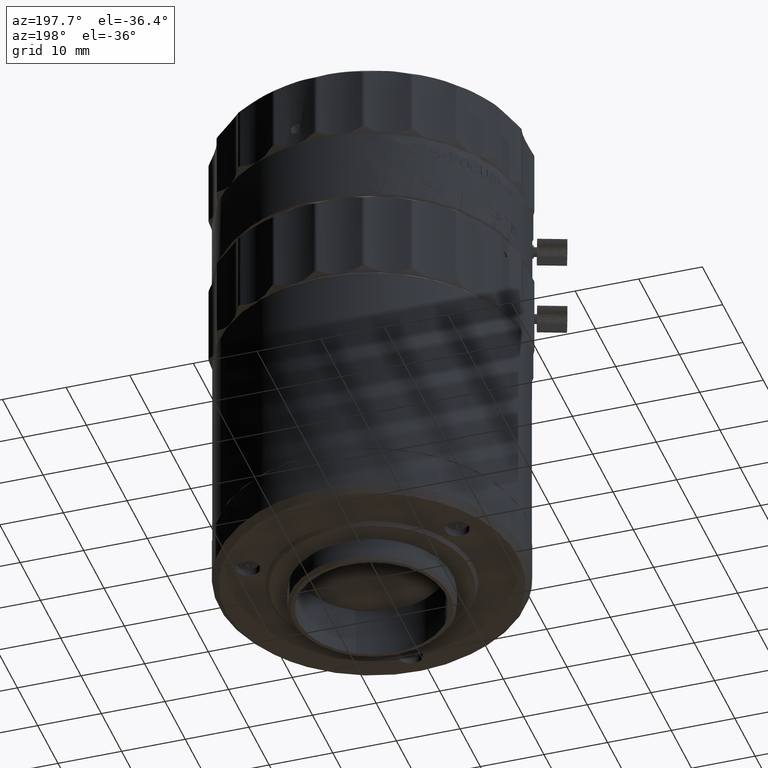
[diagram: clean part render]
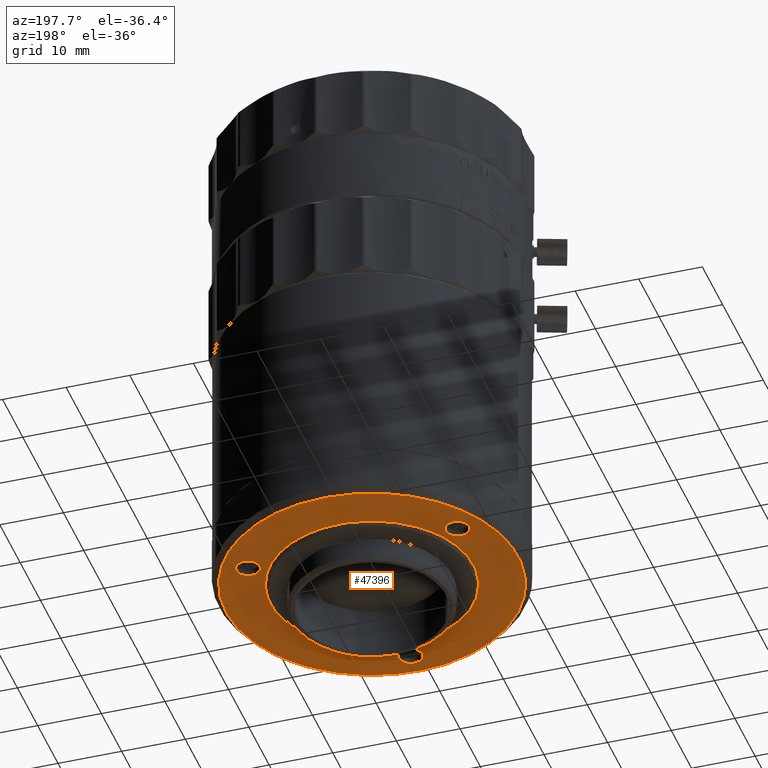
[diagram: same view with one face highlighted and labeled with its STEP entity id]
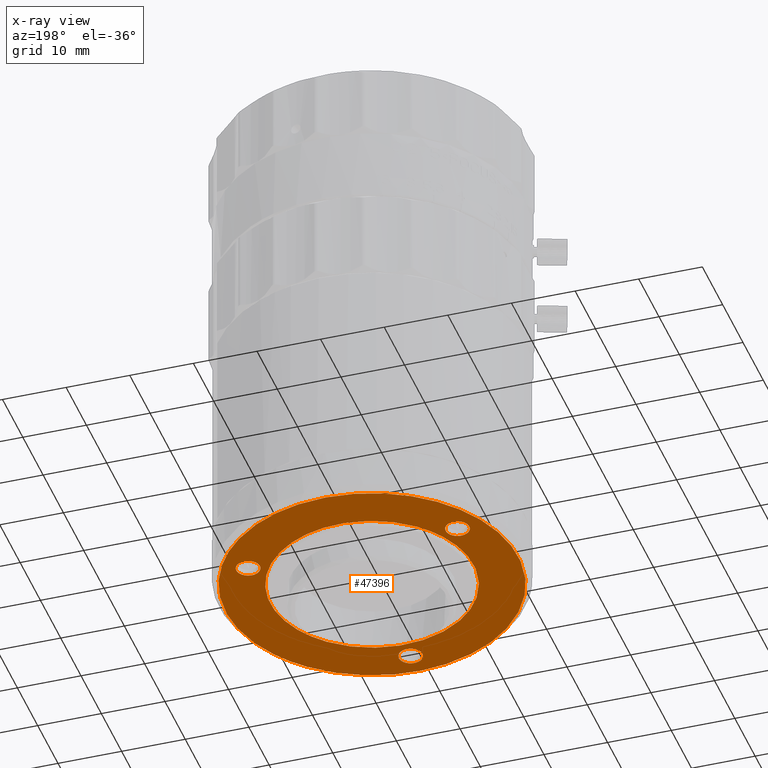
[diagram: x-ray of the same camera — body ghosted, the highlighted face saturated]
A machine part, auxiliary view. The second image highlights one B-rep face of the part: STEP entity #47396.
The next image is the same camera in x-ray: the body ghosted, the highlighted face saturated — about 0% of this face is hidden behind the body in this view.
In plain terms, the highlighted planar face has unit normal (0, 0, -1).
Its self-contained STEP definition (entity closure, byte-faithful):
#305 = CARTESIAN_POINT ( 'NONE',  ( 22.86511580797546728, 133.2777552560372953, -66.23000000000000398 ) ) ;
#885 = CARTESIAN_POINT ( 'NONE',  ( 29.16768962255219222, 173.2746603625193984, -66.23000000000001819 ) ) ;
#2241 = CARTESIAN_POINT ( 'NONE',  ( 24.48162427194447233, 129.9935959065149405, -66.23000000000000398 ) ) ;
#2401 = EDGE_CURVE ( 'NONE', #3842, #62887, #72625, .T. ) ;
#2774 = CARTESIAN_POINT ( 'NONE',  ( 22.14999999549038634, 131.5513128149209479, -66.22999999999998977 ) ) ;
#3199 = CARTESIAN_POINT ( 'NONE',  ( 26.82679825103461724, 127.9584358768173757, -66.23000000000000398 ) ) ;
#3771 = CARTESIAN_POINT ( 'NONE',  ( 1.049209739544486153, 152.4789212993354113, -66.23000000000001819 ) ) ;
#3808 = CARTESIAN_POINT ( 'NONE',  ( 46.84169437882180631, 153.7849786404583199, -66.23000000000001819 ) ) ;
#3842 = VERTEX_POINT ( 'NONE', #44959 ) ;
#4189 = CARTESIAN_POINT ( 'NONE',  ( 5.928634027317567501, 159.3647730841125849, -66.23000000000000398 ) ) ;
#4323 = CARTESIAN_POINT ( 'NONE',  ( 24.57520401468033810, 127.7912879772285493, -66.23000000000000398 ) ) ;
#4356 = CARTESIAN_POINT ( 'NONE',  ( 46.90557482590326543, 148.6155403714443253, -66.23000000000001819 ) ) ;
#4838 = CARTESIAN_POINT ( 'NONE',  ( 15.72715399654231128, 129.3225048316934647, -66.22999999999998977 ) ) ;
#5249 = CARTESIAN_POINT ( 'NONE',  ( 6.620517323588189562, 158.6943003469959876, -66.23000000000000398 ) ) ;
#5346 = CARTESIAN_POINT ( 'NONE',  ( 10.74096379030877380, 141.7617717105062809, -66.23000000000396881 ) ) ;
#5386 = CARTESIAN_POINT ( 'NONE',  ( 26.07681818651996508, 127.8779796309102466, -66.23000000000001819 ) ) ;
#5820 = CARTESIAN_POINT ( 'NONE',  ( 9.025121969450164983, 159.1593434167909322, -66.23000000000001819 ) ) ;
#6233 = ORIENTED_EDGE ( 'NONE', *, *, #51388, .T. ) ;
#6433 = CARTESIAN_POINT ( 'NONE',  ( 22.14999999549038634, 132.0419630475357735, -66.23000000000000398 ) ) ;
#6436 = CARTESIAN_POINT ( 'NONE',  ( 11.45468207834791130, 140.7943274061775014, -66.23000000000394039 ) ) ;
#6528 = EDGE_CURVE ( 'NONE', #70733, #95510, #100172, .T. ) ;
#6871 = CARTESIAN_POINT ( 'NONE',  ( 38.72991945676234593, 159.5836240967201718, -66.23000000000001819 ) ) ;
#7240 = CARTESIAN_POINT ( 'NONE',  ( 9.027050794742237372, 156.7166083007095096, -66.23000000000403986 ) ) ;
#7463 = CARTESIAN_POINT ( 'NONE',  ( 9.395809699991209740, 160.5386319247196241, -66.23000000000000398 ) ) ;
#7578 = CARTESIAN_POINT ( 'NONE',  ( 34.03198958296794530, 171.5650356808088475, -66.23000000000001819 ) ) ;
#7743 = EDGE_CURVE ( 'NONE', #95510, #70733, #106472, .T. ) ;
#8076 = CARTESIAN_POINT ( 'NONE',  ( 22.51858909261164854, 132.9314345223532996, -66.23000000000001819 ) ) ;
#10131 = VERTEX_POINT ( 'NONE', #47151 ) ;
#11171 = CARTESIAN_POINT ( 'NONE',  ( 23.75504143072492269, 129.9465201695234953, -66.23000000000001819 ) ) ;
#11629 = CARTESIAN_POINT ( 'NONE',  ( 44.00602286265920782, 139.4306750924833693, -66.23000000000000398 ) ) ;
#12142 = CARTESIAN_POINT ( 'NONE',  ( 17.87253744394367416, 128.6148985540365288, -66.22999999999998977 ) ) ;
#12695 = CARTESIAN_POINT ( 'NONE',  ( 11.69735655359577819, 131.3488046066416928, -66.22999999999998977 ) ) ;
#13246 = CARTESIAN_POINT ( 'NONE',  ( 2.492835273190256551, 159.0852499328626095, -66.23000000000000398 ) ) ;
#13284 = CARTESIAN_POINT ( 'NONE',  ( 42.60376556225094191, 137.2568754293306199, -66.22999999999998977 ) ) ;
#13775 = CARTESIAN_POINT ( 'NONE',  ( 20.06611859645375517, 128.0853546431333143, -66.22999999999998977 ) ) ;
#13931 = VERTEX_POINT ( 'NONE', #108793 ) ;
#13997 = B_SPLINE_CURVE_WITH_KNOTS ( 'NONE', 3,
 ( #100460, #91523, #16489, #93712, #59052, #23262, #75286, #84775, #42793, #76945, #92609, #14849, #305, #8076, #49009, #58505, #6433, #83129 ),
 .UNSPECIFIED., .F., .F.,
 ( 4, 2, 2, 2, 2, 2, 2, 2, 4 ),
 ( 0.000000000000000000, 0.1250000000000000000, 0.2500000000000000000, 0.3750000000000000000, 0.5000000000000000000, 0.6250000000000000000, 0.7500000000000000000, 0.8750000000000000000, 1.000000000000000000 ),
 .UNSPECIFIED. ) ;
#14015 = CARTESIAN_POINT ( 'NONE',  ( 13.15347174806973918, 162.5587951103879902, -66.23000000000259035 ) ) ;
#14205 = CARTESIAN_POINT ( 'NONE',  ( 8.477342938294080810, 158.6796801148949498, -66.23000000000001819 ) ) ;
#14745 = CARTESIAN_POINT ( 'NONE',  ( 38.60404960288011722, 160.5386696219822511, -66.23000000000001819 ) ) ;
#14770 = CARTESIAN_POINT ( 'NONE',  ( 9.162400619855070261, 161.2281216038731486, -66.22999999999998977 ) ) ;
#14849 = CARTESIAN_POINT ( 'NONE',  ( 23.06569557218887567, 133.4119501768041971, -66.23000000000001819 ) ) ;
#14884 = CARTESIAN_POINT ( 'NONE',  ( 14.04939135957394392, 171.6041493882118800, -66.22999999999998977 ) ) ;
#14895 = EDGE_CURVE ( 'NONE', #13931, #29158, #48926, .T. ) ;
#15832 = CARTESIAN_POINT ( 'NONE',  ( 39.52948266739034722, 161.8985943410000061, -66.23000000000000398 ) ) ;
#15972 = CARTESIAN_POINT ( 'NONE',  ( 4.522969443121461097, 163.1217951098619210, -66.23000000000001819 ) ) ;
#16406 = CARTESIAN_POINT ( 'NONE',  ( 6.832810053116331162, 158.5717330824522833, -66.22999999999998977 ) ) ;
#16489 = CARTESIAN_POINT ( 'NONE',  ( 25.80285143298637962, 132.2780716204427165, -66.23000000000000398 ) ) ;
#17279 = CARTESIAN_POINT ( 'NONE',  ( 8.609795748582136810, 146.0657891699208619, -66.23000000000399723 ) ) ;
#17564 = CARTESIAN_POINT ( 'NONE',  ( 39.90212122937762729, 148.0561862055548943, -66.23000000000344301 ) ) ;
#18118 = EDGE_LOOP ( 'NONE', ( #32131, #75890, #65751 ) ) ;
#18226 = DIRECTION ( 'NONE',  ( 0.000000000000000000, 0.000000000000000000, -1.000000000000000000 ) ) ;
#19018 = CARTESIAN_POINT ( 'NONE',  ( 22.86501281713719891, 130.3150364411235955, -66.23000000000001819 ) ) ;
#19251 = CARTESIAN_POINT ( 'NONE',  ( 13.15347174806973918, 162.5587951103879902, -66.23000000000259035 ) ) ;
#20018 = CARTESIAN_POINT ( 'NONE',  ( 1.116746457618743582, 153.2300271747362785, -66.22999999999998977 ) ) ;
#20055 = CARTESIAN_POINT ( 'NONE',  ( 46.99183166839186754, 149.9057137558981765, -66.23000000000000398 ) ) ;
#20430 = CARTESIAN_POINT ( 'NONE',  ( 5.743390041245866051, 160.7807742042547261, -66.23000000000000398 ) ) ;
#20560 = CARTESIAN_POINT ( 'NONE',  ( 6.581505149488910078, 135.7577779121616004, -66.23000000000000398 ) ) ;
#20791 = ORIENTED_EDGE ( 'NONE', *, *, #7743, .T. ) ;
#20982 = CARTESIAN_POINT ( 'NONE',  ( 5.695224947181267261, 160.0542627632660242, -66.23000000000000398 ) ) ;
#21111 = CARTESIAN_POINT ( 'NONE',  ( 2.930929198295685545, 141.4496140984014687, -66.23000000000001819 ) ) ;
#21464 = CARTESIAN_POINT ( 'NONE',  ( 42.07136544924252775, 159.3645330625698762, -66.22999999999998977 ) ) ;
#21671 = CARTESIAN_POINT ( 'NONE',  ( 1.465199440613994541, 155.4604375212036587, -66.23000000000000398 ) ) ;
#21708 = CARTESIAN_POINT ( 'NONE',  ( 42.97768881783573391, 137.7862697514789829, -66.23000000000000398 ) ) ;
#22223 = CARTESIAN_POINT ( 'NONE',  ( 23.82026210348132977, 127.7848535811003927, -66.22999999999998977 ) ) ;
#22257 = CARTESIAN_POINT ( 'NONE',  ( 46.83529849393060118, 147.9732624365449851, -66.23000000000001819 ) ) ;
#22709 = CARTESIAN_POINT ( 'NONE',  ( 26.35648493659508063, 134.9258965150241920, -66.23000000000368459 ) ) ;
#22751 = CARTESIAN_POINT ( 'NONE',  ( 7.853789837408690744, 167.1936564098988072, -66.23000000000001819 ) ) ;
#23155 = CARTESIAN_POINT ( 'NONE',  ( 39.52256838594695409, 158.6795645621527342, -66.23000000000001819 ) ) ;
#23262 = CARTESIAN_POINT ( 'NONE',  ( 25.13498717383233583, 133.2778582468849038, -66.23000000000001819 ) ) ;
#23307 = CARTESIAN_POINT ( 'NONE',  ( 6.325698764344966918, 165.5336705980580234, -66.23000000000000398 ) ) ;
#24579 = CARTESIAN_POINT ( 'NONE',  ( 11.83071547908005527, 161.3390289955779338, -66.23000000000401144 ) ) ;
#24724 = CARTESIAN_POINT ( 'NONE',  ( 39.96994768514342411, 162.0986941916139017, -66.23000000000001819 ) ) ;
#25979 = CARTESIAN_POINT ( 'NONE',  ( 14.69315947017105906, 163.9786023377935749, -66.23000000000394039 ) ) ;
#26065 = FACE_OUTER_BOUND ( 'NONE', #83727, .T. ) ;
#26311 = CARTESIAN_POINT ( 'NONE',  ( 25.84999999548983851, 131.5509316404623803, -66.23000000000000398 ) ) ;
#28277 = CARTESIAN_POINT ( 'NONE',  ( 6.224925650962184420, 161.6150874739696235, -66.23000000000001819 ) ) ;
#28468 = CARTESIAN_POINT ( 'NONE',  ( 6.620517323588189562, 158.6943003469959876, -66.23000000000000398 ) ) ;
#28824 = CARTESIAN_POINT ( 'NONE',  ( 41.37948266739000758, 158.6943003469999951, -66.23000000000000398 ) ) ;
#28968 = CARTESIAN_POINT ( 'NONE',  ( 0.9948973420655217170, 150.2210042472474640, -66.23000000000001819 ) ) ;
#29004 = CARTESIAN_POINT ( 'NONE',  ( 44.54167390258786696, 161.1627737984227906, -66.23000000000000398 ) ) ;
#29158 = VERTEX_POINT ( 'NONE', #71516 ) ;
#29353 = EDGE_LOOP ( 'NONE', ( #40800, #70488 ) ) ;
#29386 = CARTESIAN_POINT ( 'NONE',  ( 8.470517323586781444, 161.8985943409980166, -66.23000000000000398 ) ) ;
#29511 = CARTESIAN_POINT ( 'NONE',  ( 17.14797048483121955, 128.8279140030776944, -66.22999999999998977 ) ) ;
#30052 = CARTESIAN_POINT ( 'NONE',  ( 6.097908112704895522, 136.3366966249232917, -66.23000000000001819 ) ) ;
#30087 = CARTESIAN_POINT ( 'NONE',  ( 45.52300470154875001, 142.2851759066111299, -66.22999999999998977 ) ) ;
#30560 = CARTESIAN_POINT ( 'NONE',  ( 39.59190412186221408, 133.8880509856580545, -66.23000000000165244 ) ) ;
#30581 = CARTESIAN_POINT ( 'NONE',  ( 20.40980180609041739, 135.1587402916988481, -66.23000000000384091 ) ) ;
#30618 = CARTESIAN_POINT ( 'NONE',  ( 11.05822890273754666, 169.8878549434689944, -66.22999999999998977 ) ) ;
#31165 = CARTESIAN_POINT ( 'NONE',  ( 5.191568029304287180, 137.5370669626567235, -66.23000000000000398 ) ) ;
#31495 = CARTESIAN_POINT ( 'NONE',  ( 42.25675435470854779, 160.7807932155354820, -66.23000000000001819 ) ) ;
#31582 = CARTESIAN_POINT ( 'NONE',  ( 7.546897272642198118, 158.4302286392507142, -66.23000000000000398 ) ) ;
#32102 = CARTESIAN_POINT ( 'NONE',  ( 38.73099017463334093, 161.0118555328957086, -66.23000000000001819 ) ) ;
#32128 = CARTESIAN_POINT ( 'NONE',  ( 8.864041386391132704, 161.6171903714457585, -66.23000000000000398 ) ) ;
#32131 = ORIENTED_EDGE ( 'NONE', *, *, #84311, .F. ) ;
#32216 = CARTESIAN_POINT ( 'NONE',  ( 34.84654770465032669, 139.0340784783462311, -66.23000000000176613 ) ) ;
#32677 = CARTESIAN_POINT ( 'NONE',  ( 41.16685983110157565, 158.5715424952327623, -66.23000000000000398 ) ) ;
#33227 = CARTESIAN_POINT ( 'NONE',  ( 6.620517323588189562, 158.6943003469959876, -66.23000000000000398 ) ) ;
#33344 = CARTESIAN_POINT ( 'NONE',  ( 7.326441301835684428, 166.6571929082105044, -66.23000000000001819 ) ) ;
#33355 = FACE_BOUND ( 'NONE', #18118, .T. ) ;
#33538 = CARTESIAN_POINT ( 'NONE',  ( 7.943498102967983421, 149.6021858579933905, -66.23000000000401144 ) ) ;
#34398 = CARTESIAN_POINT ( 'NONE',  ( 37.18215498872068281, 160.1032878701169579, -66.23000000000347143 ) ) ;
#34723 = CARTESIAN_POINT ( 'NONE',  ( 25.61529522073493581, 130.8620224644217842, -66.23000000000000398 ) ) ;
#34949 = CARTESIAN_POINT ( 'NONE',  ( 43.91858428241379642, 162.2964473442360145, -66.23000000000000398 ) ) ;
#35018 = CARTESIAN_POINT ( 'NONE',  ( 43.05616257219786291, 163.7902055638350589, -66.23000000000000398 ) ) ;
#35475 = ORIENTED_EDGE ( 'NONE', *, *, #2401, .T. ) ;
#36086 = CARTESIAN_POINT ( 'NONE',  ( 28.81526187169330555, 166.1977376765568124, -66.23000000000364196 ) ) ;
#36401 = ORIENTED_EDGE ( 'NONE', *, *, #86044, .T. ) ;
#37366 = CARTESIAN_POINT ( 'NONE',  ( 8.138589871566992429, 134.1235480847321639, -66.22999999999998977 ) ) ;
#37400 = CARTESIAN_POINT ( 'NONE',  ( 46.48276650254521059, 155.6898300162371243, -66.22999999999998977 ) ) ;
#37935 = CARTESIAN_POINT ( 'NONE',  ( 7.602262816651958133, 134.6507288938985027, -66.22999999999998977 ) ) ;
#38279 = B_SPLINE_CURVE_WITH_KNOTS ( 'NONE', 3,
 ( #32216, #38970, #91525, #82027, #49548, #73098, #22709, #100462, #66357, #30581, #83131, #57964, #38436, #56836, #74734, #6436, #5346, #49011 ),
 .UNSPECIFIED., .F., .F.,
 ( 4, 2, 2, 2, 2, 2, 2, 2, 4 ),
 ( 0.6367615529778706263, 0.6821663588556369229, 0.7275711647334031085, 0.7729759706111691830, 0.8183807764889353686, 0.8637855823667015542, 0.9091903882444676288, 0.9545951941222338144, 1.000000000000000000 ),
 .UNSPECIFIED. ) ;
#38436 = CARTESIAN_POINT ( 'NONE',  ( 15.96330742234682987, 136.9097998948299448, -66.23000000000388354 ) ) ;
#38480 = CARTESIAN_POINT ( 'NONE',  ( 31.22818741053754366, 128.9487311892361561, -66.23000000000000398 ) ) ;
#38515 = CARTESIAN_POINT ( 'NONE',  ( 45.79144411324191566, 158.1825599290642970, -66.22999999999998977 ) ) ;
#38970 = CARTESIAN_POINT ( 'NONE',  ( 33.96821865670743534, 138.2241754087084189, -66.23000000000357090 ) ) ;
#39004 = CARTESIAN_POINT ( 'NONE',  ( 29.05073239866827706, 128.3451658947186615, -66.22999999999998977 ) ) ;
#39348 = CARTESIAN_POINT ( 'NONE',  ( 41.77300724461449732, 158.9759443380995663, -66.23000000000000398 ) ) ;
#39556 = CARTESIAN_POINT ( 'NONE',  ( 28.31442925732919491, 128.1921186410241376, -66.23000000000000398 ) ) ;
#39894 = CARTESIAN_POINT ( 'NONE',  ( 41.38639694883169540, 161.9133301258478355, -66.23000000000001819 ) ) ;
#39954 = CARTESIAN_POINT ( 'NONE',  ( 38.65221098007341993, 159.8121014724627855, -66.23000000000001819 ) ) ;
#40044 = B_SPLINE_CURVE_WITH_KNOTS ( 'NONE', 3,
 ( #40837, #41396, #17279, #33538, #85017, #83912, #7240, #92856, #24579, #110137 ),
 .UNSPECIFIED., .F., .F.,
 ( 4, 2, 2, 2, 4 ),
 ( 0.000000000000000000, 0.2500000000000000000, 0.5000000000000000000, 0.7500000000000000000, 1.000000000000000000 ),
 .UNSPECIFIED. ) ;
#40514 = CARTESIAN_POINT ( 'NONE',  ( 9.411736028327398529, 160.2978272930421610, -66.22999999999998977 ) ) ;
#40800 = ORIENTED_EDGE ( 'NONE', *, *, #63092, .T. ) ;
#40837 = CARTESIAN_POINT ( 'NONE',  ( 10.14359353397403929, 142.7964473457003862, -66.23000000000199350 ) ) ;
#40976 = CARTESIAN_POINT ( 'NONE',  ( 42.17904587801990601, 161.0092705912776978, -66.23000000000001819 ) ) ;
#41036 = CARTESIAN_POINT ( 'NONE',  ( 40.45289459635786500, 158.4303482045331748, -66.23000000000000398 ) ) ;
#41396 = CARTESIAN_POINT ( 'NONE',  ( 9.243938944614882303, 144.3546948041728228, -66.23000000000399723 ) ) ;
#41540 = CARTESIAN_POINT ( 'NONE',  ( 41.16989085628745215, 162.0199398367570893, -66.23000000000000398 ) ) ;
#41736 = CARTESIAN_POINT ( 'NONE',  ( 43.91858428241379642, 162.2964473442360145, -66.23000000000000398 ) ) ;
#42793 = CARTESIAN_POINT ( 'NONE',  ( 24.24495856025529505, 133.6463745184804850, -66.23000000000001819 ) ) ;
#43169 = VERTEX_POINT ( 'NONE', #14015 ) ;
#43337 = CARTESIAN_POINT ( 'NONE',  ( 39.40129032833851852, 145.9811854687289951, -66.23000000000345722 ) ) ;
#43417 = DIRECTION ( 'NONE',  ( 0.000000000000000000, -1.000000000000000000, 0.000000000000000000 ) ) ;
#44239 = VERTEX_POINT ( 'NONE', #28824 ) ;
#44266 = EDGE_CURVE ( 'NONE', #48881, #44239, #52656, .T. ) ;
#44520 = B_SPLINE_CURVE_WITH_KNOTS ( 'NONE', 3,
 ( #105615, #107793, #29004, #54181, #64248, #38515, #55280, #98906, #37400, #3808, #89421, #96711, #20055, #4356, #22257, #55843, #30087, #11629, #98352, #21708, #13284, #47444, #88316, #81558 ),
 .UNSPECIFIED., .F., .F.,
 ( 4, 2, 2, 2, 2, 2, 2, 2, 2, 2, 2, 4 ),
 ( 0.000000000000000000, 0.01878038678835184522, 0.03756077357670369044, 0.05634116036505552871, 0.07512154715340738087, 0.1126823207301102664, 0.1314627075184621185, 0.1502430943068139568, 0.2253646414602213377, 0.2441450282485733703, 0.2629254150369254028, 0.3004861886136296345 ),
 .UNSPECIFIED. ) ;
#44598 = EDGE_CURVE ( 'NONE', #62887, #78231, #44520, .T. ) ;
#44639 = B_SPLINE_CURVE_WITH_KNOTS ( 'NONE', 3,
 ( #55597, #62923, #39348, #21464, #97036, #89728, #45568, #31495, #40976, #56670, #109736, #39894, #41540, #48844, #93003, #24724, #82414, #50483 ),
 .UNSPECIFIED., .F., .F.,
 ( 4, 2, 2, 2, 2, 2, 2, 2, 4 ),
 ( 0.000000000000000000, 0.1250000000000000000, 0.2500000000000000000, 0.3750000000000000000, 0.5000000000000000000, 0.6250000000000000000, 0.7500000000000000000, 0.8750000000000000000, 1.000000000000000000 ),
 .UNSPECIFIED. ) ;
#44959 = CARTESIAN_POINT ( 'NONE',  ( 8.408115639805050279, 167.7048222582034782, -66.23000000000570253 ) ) ;
#45081 = CARTESIAN_POINT ( 'NONE',  ( 8.029844183853677819, 162.0985746263316116, -66.23000000000000398 ) ) ;
#45096 = EDGE_LOOP ( 'NONE', ( #55841, #20791 ) ) ;
#45568 = CARTESIAN_POINT ( 'NONE',  ( 42.32055696715323734, 160.2950483836789317, -66.23000000000001819 ) ) ;
#46312 = CARTESIAN_POINT ( 'NONE',  ( 2.152533453590208534, 143.5676734332139972, -66.23000000000000398 ) ) ;
#46880 = CARTESIAN_POINT ( 'NONE',  ( 1.161782485463392911, 147.9707270280013631, -66.23000000000000398 ) ) ;
#47151 = CARTESIAN_POINT ( 'NONE',  ( 10.14359353397403929, 142.7964473457003862, -66.23000000000199350 ) ) ;
#47396 = ADVANCED_FACE ( 'NONE', ( #26065, #67493, #59665, #76426, #33355 ), #86500, .T. ) ;
#47410 = CARTESIAN_POINT ( 'NONE',  ( 34.68992749243094664, 130.4176392346186333, -66.23000000000000398 ) ) ;
#47444 = CARTESIAN_POINT ( 'NONE',  ( 41.41962373004520259, 135.7222698422206975, -66.23000000000000398 ) ) ;
#48352 = CARTESIAN_POINT ( 'NONE',  ( 39.13397966150360219, 158.9779227667710870, -66.23000000000000398 ) ) ;
#48376 = CARTESIAN_POINT ( 'NONE',  ( 9.347644605925996331, 159.8121204837329117, -66.23000000000000398 ) ) ;
#48844 = CARTESIAN_POINT ( 'NONE',  ( 40.69670494537153616, 162.1468804085103557, -66.23000000000001819 ) ) ;
#48881 = VERTEX_POINT ( 'NONE', #74524 ) ;
#48926 = B_SPLINE_CURVE_WITH_KNOTS ( 'NONE', 3,
 ( #54274, #2774, #62695, #62137, #96231, #19018, #88397, #53711, #11171, #53151, #2241, #78356, #79461, #87281, #34723, #68856, #26311, #69404 ),
 .UNSPECIFIED., .F., .F.,
 ( 4, 2, 2, 2, 2, 2, 2, 2, 4 ),
 ( 0.000000000000000000, 0.1250000000000000000, 0.2500000000000000000, 0.3750000000000000000, 0.5000000000000000000, 0.6250000000000000000, 0.7500000000000000000, 0.8750000000000000000, 1.000000000000000000 ),
 .UNSPECIFIED. ) ;
#48928 = CARTESIAN_POINT ( 'NONE',  ( 8.260963209743144020, 158.5728141631351491, -66.23000000000001819 ) ) ;
#49009 = CARTESIAN_POINT ( 'NONE',  ( 22.38470477024583971, 132.7308722235897562, -66.23000000000000398 ) ) ;
#49011 = CARTESIAN_POINT ( 'NONE',  ( 10.14359353397403929, 142.7964473457003862, -66.23000000000199350 ) ) ;
#49050 = CARTESIAN_POINT ( 'NONE',  ( 15.62265643892743050, 172.2857795365119102, -66.23000000000000398 ) ) ;
#49548 = CARTESIAN_POINT ( 'NONE',  ( 29.82316780893191677, 135.8459248946252842, -66.23000000000359933 ) ) ;
#50483 = CARTESIAN_POINT ( 'NONE',  ( 39.52948266739034722, 161.8985943410000061, -66.23000000000000398 ) ) ;
#51388 = EDGE_CURVE ( 'NONE', #78231, #3842, #74503, .T. ) ;
#51779 = CARTESIAN_POINT ( 'NONE',  ( 35.95999999549499648, 130.0811196854999992, -66.23000000000000398 ) ) ;
#52656 = B_SPLINE_CURVE_WITH_KNOTS ( 'NONE', 3,
 ( #15832, #66252, #56734, #57858, #32102, #14745, #101435, #39954, #6871, #109800, #48352, #23155, #93066, #74091, #41036, #109254, #32677, #57299 ),
 .UNSPECIFIED., .F., .F.,
 ( 4, 2, 2, 2, 2, 2, 2, 2, 4 ),
 ( 0.000000000000000000, 0.1250000000000000000, 0.2500000000000000000, 0.3750000000000000000, 0.5000000000000000000, 0.6250000000000000000, 0.7500000000000000000, 0.8750000000000000000, 1.000000000000000000 ),
 .UNSPECIFIED. ) ;
#52831 = CARTESIAN_POINT ( 'NONE',  ( 22.55490323952518139, 166.8681051990571405, -66.23000000000378407 ) ) ;
#53151 = CARTESIAN_POINT ( 'NONE',  ( 24.24495856026047136, 129.9463745184810080, -66.23000000000001819 ) ) ;
#53378 = CARTESIAN_POINT ( 'NONE',  ( 32.61714951132476159, 164.4394391370736912, -66.23000000000357090 ) ) ;
#53711 = CARTESIAN_POINT ( 'NONE',  ( 23.51831998080701069, 129.9934613424925374, -66.23000000000001819 ) ) ;
#53944 = CARTESIAN_POINT ( 'NONE',  ( 26.74026113489768264, 166.6985685777214314, -66.23000000000367038 ) ) ;
#54146 = CARTESIAN_POINT ( 'NONE',  ( 35.35015781377946809, 130.7778832859536919, -66.22999999999998977 ) ) ;
#54181 = CARTESIAN_POINT ( 'NONE',  ( 45.09125942172263279, 159.9930610920857248, -66.22999999999998977 ) ) ;
#54274 = CARTESIAN_POINT ( 'NONE',  ( 22.14999999549015186, 131.7964473440000006, -66.23000000000000398 ) ) ;
#54487 = VERTEX_POINT ( 'NONE', #69499 ) ;
#54567 = CARTESIAN_POINT ( 'NONE',  ( 5.679298618845533220, 160.2950673949417819, -66.23000000000001819 ) ) ;
#54687 = CARTESIAN_POINT ( 'NONE',  ( 39.59190412186221408, 133.8880509856580545, -66.23000000000165244 ) ) ;
#55245 = CARTESIAN_POINT ( 'NONE',  ( 30.50831395773008836, 128.7236721452902373, -66.23000000000000398 ) ) ;
#55280 = CARTESIAN_POINT ( 'NONE',  ( 45.99022910700887934, 157.5677908105578240, -66.22999999999998977 ) ) ;
#55597 = CARTESIAN_POINT ( 'NONE',  ( 41.37948266739000758, 158.6943003469999951, -66.23000000000000398 ) ) ;
#55807 = CARTESIAN_POINT ( 'NONE',  ( 33.33497057684377296, 129.7625668030659085, -66.23000000000001819 ) ) ;
#55841 = ORIENTED_EDGE ( 'NONE', *, *, #6528, .T. ) ;
#55843 = CARTESIAN_POINT ( 'NONE',  ( 46.34817728042543905, 144.7759165486858137, -66.23000000000001819 ) ) ;
#56340 = CARTESIAN_POINT ( 'NONE',  ( 15.02908595760828803, 129.6047126630384128, -66.22999999999998977 ) ) ;
#56670 = CARTESIAN_POINT ( 'NONE',  ( 41.93421345076123430, 161.4336240967216725, -66.23000000000001819 ) ) ;
#56734 = CARTESIAN_POINT ( 'NONE',  ( 39.13595809016221949, 161.6169503498906579, -66.23000000000000398 ) ) ;
#56836 = CARTESIAN_POINT ( 'NONE',  ( 13.99006428189342799, 138.2573647658199718, -66.23000000000391196 ) ) ;
#57299 = CARTESIAN_POINT ( 'NONE',  ( 41.37948266739000758, 158.6943003469999951, -66.23000000000000398 ) ) ;
#57325 = CARTESIAN_POINT ( 'NONE',  ( 9.269150504447486227, 161.0118932301478480, -66.22999999999998977 ) ) ;
#57858 = CARTESIAN_POINT ( 'NONE',  ( 38.83759988554253084, 161.2283616254395611, -66.22999999999998977 ) ) ;
#57964 = CARTESIAN_POINT ( 'NONE',  ( 17.02566999521313917, 136.3470139315788572, -66.23000000000385512 ) ) ;
#58505 = CARTESIAN_POINT ( 'NONE',  ( 22.19694095044147275, 132.2779511641609531, -66.23000000000001819 ) ) ;
#59052 = CARTESIAN_POINT ( 'NONE',  ( 25.48130790753366881, 132.9313315315129955, -66.23000000000001819 ) ) ;
#59091 = CARTESIAN_POINT ( 'NONE',  ( 35.54706420873728945, 170.7623330293966717, -66.23000000000001819 ) ) ;
#59665 = FACE_BOUND ( 'NONE', #83332, .T. ) ;
#60130 = CARTESIAN_POINT ( 'NONE',  ( 39.74029686508252723, 154.3502544998861481, -66.23000000000345722 ) ) ;
#60701 = CARTESIAN_POINT ( 'NONE',  ( 36.38621596626372678, 140.4539068065169829, -66.23000000000351406 ) ) ;
#62137 = CARTESIAN_POINT ( 'NONE',  ( 22.38449716268856093, 130.8621429207017002, -66.22999999999998977 ) ) ;
#62432 = CARTESIAN_POINT ( 'NONE',  ( 5.820827975447598668, 161.0093434167869475, -66.23000000000001819 ) ) ;
#62695 = CARTESIAN_POINT ( 'NONE',  ( 22.19714855800203424, 131.3148230675476498, -66.23000000000000398 ) ) ;
#62887 = VERTEX_POINT ( 'NONE', #34949 ) ;
#62923 = CARTESIAN_POINT ( 'NONE',  ( 41.59177539692310432, 158.8168676115427616, -66.22999999999998977 ) ) ;
#62990 = CARTESIAN_POINT ( 'NONE',  ( 7.544137374529813478, 162.1626660487352751, -66.23000000000000398 ) ) ;
#62992 = EDGE_CURVE ( 'NONE', #43169, #54487, #78150, .T. ) ;
#63092 = EDGE_CURVE ( 'NONE', #44239, #48881, #44639, .T. ) ;
#63538 = CARTESIAN_POINT ( 'NONE',  ( 7.303332742861948113, 162.1467397204017118, -66.23000000000001819 ) ) ;
#63668 = CARTESIAN_POINT ( 'NONE',  ( 13.66112428128946021, 130.2373476252135163, -66.23000000000000398 ) ) ;
#64211 = CARTESIAN_POINT ( 'NONE',  ( 0.9883558417712922095, 150.9760145206892332, -66.23000000000000398 ) ) ;
#64248 = CARTESIAN_POINT ( 'NONE',  ( 45.34202430008848239, 159.3950339262327418, -66.22999999999998977 ) ) ;
#64767 = CARTESIAN_POINT ( 'NONE',  ( 36.63612218358631623, 131.5637870597409460, -66.22999999999998977 ) ) ;
#65700 = CARTESIAN_POINT ( 'NONE',  ( 6.226993260781431339, 158.9757043165399750, -66.23000000000001819 ) ) ;
#65717 = CARTESIAN_POINT ( 'NONE',  ( 8.866108996211615079, 158.9778072140175027, -66.23000000000001819 ) ) ;
#65751 = ORIENTED_EDGE ( 'NONE', *, *, #62992, .F. ) ;
#66252 = CARTESIAN_POINT ( 'NONE',  ( 39.31718993786347482, 161.7760270764603661, -66.22999999999998977 ) ) ;
#66357 = CARTESIAN_POINT ( 'NONE',  ( 22.77204215033909307, 134.7989624034447615, -66.23000000000374143 ) ) ;
#67481 = CARTESIAN_POINT ( 'NONE',  ( 30.82322440982288114, 172.8285805075817905, -66.23000000000000398 ) ) ;
#67483 = CARTESIAN_POINT ( 'NONE',  ( 8.408115639805050279, 167.7048222582034782, -66.23000000000570253 ) ) ;
#67493 = FACE_BOUND ( 'NONE', #45096, .T. ) ;
#68540 = CARTESIAN_POINT ( 'NONE',  ( 38.29526115428975430, 158.2818998517540479, -66.23000000000348564 ) ) ;
#68856 = CARTESIAN_POINT ( 'NONE',  ( 25.80305904053885513, 131.3149435238371723, -66.23000000000001819 ) ) ;
#69081 = CARTESIAN_POINT ( 'NONE',  ( 34.84654770465032669, 139.0340784783462311, -66.23000000000176613 ) ) ;
#69404 = CARTESIAN_POINT ( 'NONE',  ( 25.84999999548990246, 131.7964473440026154, -66.23000000000000398 ) ) ;
#69499 = CARTESIAN_POINT ( 'NONE',  ( 34.84654770465032669, 139.0340784783462311, -66.23000000000176613 ) ) ;
#70488 = ORIENTED_EDGE ( 'NONE', *, *, #44266, .T. ) ;
#70733 = VERTEX_POINT ( 'NONE', #94089 ) ;
#70762 = CARTESIAN_POINT ( 'NONE',  ( 34.34254053372287530, 163.1826633141475043, -66.23000000000354248 ) ) ;
#70825 = CARTESIAN_POINT ( 'NONE',  ( 6.613691708877112774, 161.9132145730901300, -66.23000000000001819 ) ) ;
#71510 = CARTESIAN_POINT ( 'NONE',  ( 4.766805916872279170, 138.1611806206917379, -66.23000000000000398 ) ) ;
#71516 = CARTESIAN_POINT ( 'NONE',  ( 25.84999999548990246, 131.7964473440026154, -66.23000000000000398 ) ) ;
#71874 = AXIS2_PLACEMENT_3D ( 'NONE', #51779, #18226, #43417 ) ;
#72074 = CARTESIAN_POINT ( 'NONE',  ( 1.324838210259297266, 154.7216099997787637, -66.23000000000000398 ) ) ;
#72599 = CARTESIAN_POINT ( 'NONE',  ( 9.263140424064092215, 133.1218738663297074, -66.22999999999998977 ) ) ;
#72625 = B_SPLINE_CURVE_WITH_KNOTS ( 'NONE', 3,
 ( #100493, #91557, #30618, #14884, #49050, #83165, #110479, #86487, #78097, #885, #67481, #7578, #59091, #77550, #103241, #101575, #35018, #41736 ),
 .UNSPECIFIED., .F., .F.,
 ( 4, 2, 2, 2, 2, 2, 2, 2, 4 ),
 ( 0.000000000000000000, 0.1250000000000000833, 0.2500000000000001665, 0.3750000000000001110, 0.5000000000000001110, 0.6250000000000001110, 0.7500000000000000000, 0.8750000000000000000, 1.000000000000000000 ),
 .UNSPECIFIED. ) ;
#73098 = CARTESIAN_POINT ( 'NONE',  ( 27.53822121509751497, 135.1468979736864640, -66.23000000000365617 ) ) ;
#73575 = CARTESIAN_POINT ( 'NONE',  ( 7.787701904311150614, 158.4461549675846186, -66.23000000000001819 ) ) ;
#73695 = CARTESIAN_POINT ( 'NONE',  ( 12.99477840048695576, 130.5861660139341893, -66.23000000000000398 ) ) ;
#74091 = CARTESIAN_POINT ( 'NONE',  ( 40.21226038940940128, 158.4460142794895319, -66.23000000000001819 ) ) ;
#74503 = B_SPLINE_CURVE_WITH_KNOTS ( 'NONE', 3,
 ( #54687, #79877, #97768, #80997, #64767, #54146, #47410, #55807, #82064, #38480, #55245, #39004, #39556, #3199, #5386, #4323, #22223, #98868, #13775, #12142, #29511, #4838, #56340, #63668, #73695, #12695, #107758, #106668, #72599, #37366, #37935, #20560, #30052, #31165, #71510, #88823, #21111, #46312, #89384, #96677, #80434, #46880, #105579, #28968, #64211, #3771, #20018, #72074, #21671, #89936, #13246, #92645, #15972, #109928, #23307, #33344, #22751, #67483 ),
 .UNSPECIFIED., .F., .F.,
 ( 4, 2, 2, 2, 2, 2, 2, 2, 2, 2, 2, 2, 2, 2, 2, 2, 2, 2, 2, 2, 2, 2, 2, 2, 2, 2, 2, 2, 4 ),
 ( 0.3004861886136296345, 0.3223459952194537848, 0.3442058018252779905, 0.3660656084311021408, 0.3879254150369262910, 0.4097852216427505523, 0.4316450282485748691, 0.4535048348543990748, 0.4753646414602233916, 0.5190842546718718031, 0.5409440612776960089, 0.5628038678835203257, 0.5846636744893445314, 0.6065234810951689592, 0.6283832877009931650, 0.6502430943068174818, 0.6721029009126417986, 0.6939627075184660043, 0.7376823207301146379, 0.7595421273359386216, 0.7814019339417626053, 0.8032617405475864780, 0.8251215471534104617, 0.8469813537592343344, 0.8688411603650583181, 0.9125607735767052864, 0.9562803867883523656, 0.9781401933941761273, 1.000000000000000000 ),
 .UNSPECIFIED. ) ;
#74524 = CARTESIAN_POINT ( 'NONE',  ( 39.52948266739034722, 161.8985943410000061, -66.23000000000000398 ) ) ;
#74629 = CARTESIAN_POINT ( 'NONE',  ( 6.407894487294396590, 158.8170581987618561, -66.23000000000000398 ) ) ;
#74734 = CARTESIAN_POINT ( 'NONE',  ( 13.07926633538192362, 139.0420872500716314, -66.23000000000391196 ) ) ;
#75286 = CARTESIAN_POINT ( 'NONE',  ( 24.93424868055269883, 133.4118156127858583, -66.23000000000001819 ) ) ;
#75890 = ORIENTED_EDGE ( 'NONE', *, *, #105662, .F. ) ;
#76426 = FACE_BOUND ( 'NONE', #29353, .T. ) ;
#76945 = CARTESIAN_POINT ( 'NONE',  ( 23.75504143071974639, 133.6465201695229723, -66.23000000000001819 ) ) ;
#77485 = CARTESIAN_POINT ( 'NONE',  ( 37.64299178908545684, 142.1792978289911673, -66.23000000000349985 ) ) ;
#77550 = CARTESIAN_POINT ( 'NONE',  ( 38.39496394180982719, 168.8175485747772484, -66.23000000000000398 ) ) ;
#78097 = CARTESIAN_POINT ( 'NONE',  ( 25.75840966782188701, 173.7938228152998761, -66.23000000000001819 ) ) ;
#78150 = B_SPLINE_CURVE_WITH_KNOTS ( 'NONE', 3,
 ( #19251, #25979, #85855, #94810, #52831, #53944, #36086, #53378, #70762, #34398, #68540, #60130, #94234, #17564, #43337, #77485, #60701, #69081 ),
 .UNSPECIFIED., .F., .F.,
 ( 4, 2, 2, 2, 2, 2, 2, 2, 4 ),
 ( 0.000000000000000000, 0.07959519412223382828, 0.1591903882444676566, 0.2387855823667014987, 0.3183807764889353131, 0.3979759706111691275, 0.4775711647334029974, 0.5571663588556368119, 0.6367615529778706263 ),
 .UNSPECIFIED. ) ;
#78231 = VERTEX_POINT ( 'NONE', #30560 ) ;
#78356 = CARTESIAN_POINT ( 'NONE',  ( 24.93430441879140957, 130.1809445111998116, -66.23000000000001819 ) ) ;
#79461 = CARTESIAN_POINT ( 'NONE',  ( 25.13488418300979532, 130.3151394319717156, -66.23000000000000398 ) ) ;
#79877 = CARTESIAN_POINT ( 'NONE',  ( 39.03891577547140912, 133.3781278416936402, -66.23000000000000398 ) ) ;
#80434 = CARTESIAN_POINT ( 'NONE',  ( 1.395783435177932130, 146.4817714024059683, -66.22999999999998977 ) ) ;
#80858 = CARTESIAN_POINT ( 'NONE',  ( 5.821884142724932154, 159.5810014578380560, -66.23000000000001819 ) ) ;
#80997 = CARTESIAN_POINT ( 'NONE',  ( 37.25865915125142180, 131.9874569088798921, -66.23000000000000398 ) ) ;
#81558 = CARTESIAN_POINT ( 'NONE',  ( 39.59190412186221408, 133.8880509856580545, -66.23000000000165244 ) ) ;
#82027 = CARTESIAN_POINT ( 'NONE',  ( 30.92628245194588743, 136.3239210881538952, -66.23000000000361354 ) ) ;
#82064 = CARTESIAN_POINT ( 'NONE',  ( 32.63997354866349099, 129.4676171386417991, -66.23000000000001819 ) ) ;
#82414 = CARTESIAN_POINT ( 'NONE',  ( 39.74210550367927652, 162.0213521927671536, -66.23000000000000398 ) ) ;
#82504 = CARTESIAN_POINT ( 'NONE',  ( 8.470517323586781444, 161.8985943409980166, -66.23000000000000398 ) ) ;
#83129 = CARTESIAN_POINT ( 'NONE',  ( 22.14999999549015186, 131.7964473440000006, -66.23000000000000398 ) ) ;
#83131 = CARTESIAN_POINT ( 'NONE',  ( 19.24896373251974424, 135.4714658001058467, -66.23000000000385512 ) ) ;
#83165 = CARTESIAN_POINT ( 'NONE',  ( 18.92034681956055664, 173.2947183931028690, -66.23000000000000398 ) ) ;
#83332 = EDGE_LOOP ( 'NONE', ( #109563, #36401 ) ) ;
#83595 = CARTESIAN_POINT ( 'NONE',  ( 7.061190463319794830, 158.4943200616542640, -66.22999999999998977 ) ) ;
#83727 = EDGE_LOOP ( 'NONE', ( #35475, #106295, #6233 ) ) ;
#83912 = CARTESIAN_POINT ( 'NONE',  ( 8.453321261168925460, 154.9843219664463732, -66.23000000000403986 ) ) ;
#84146 = CARTESIAN_POINT ( 'NONE',  ( 9.270206671724031011, 159.5835512711990418, -66.23000000000000398 ) ) ;
#84311 = EDGE_CURVE ( 'NONE', #10131, #43169, #40044, .T. ) ;
#84775 = CARTESIAN_POINT ( 'NONE',  ( 24.48168001017310047, 133.5994333455114997, -66.23000000000001819 ) ) ;
#85017 = CARTESIAN_POINT ( 'NONE',  ( 7.911486737246911538, 151.4267287580190384, -66.23000000000403986 ) ) ;
#85855 = CARTESIAN_POINT ( 'NONE',  ( 16.51454748860130550, 165.0917085032524483, -66.23000000000391196 ) ) ;
#86044 = EDGE_CURVE ( 'NONE', #29158, #13931, #13997, .T. ) ;
#86487 = CARTESIAN_POINT ( 'NONE',  ( 24.04514626137533995, 173.8609880591534704, -66.23000000000001819 ) ) ;
#86500 = PLANE ( 'NONE',  #71874 ) ;
#87281 = CARTESIAN_POINT ( 'NONE',  ( 25.48141089836432016, 130.6614601656464743, -66.23000000000001819 ) ) ;
#88316 = CARTESIAN_POINT ( 'NONE',  ( 40.54213416513110246, 134.7641718950148118, -66.23000000000000398 ) ) ;
#88397 = CARTESIAN_POINT ( 'NONE',  ( 23.06575131042706417, 130.1810790752183209, -66.23000000000001819 ) ) ;
#88823 = CARTESIAN_POINT ( 'NONE',  ( 3.589464782544446564, 140.0874947151506831, -66.23000000000000398 ) ) ;
#89384 = CARTESIAN_POINT ( 'NONE',  ( 1.927099126534695728, 144.2884713082373764, -66.23000000000001819 ) ) ;
#89421 = CARTESIAN_POINT ( 'NONE',  ( 46.97388290993865212, 152.4924970323457387, -66.23000000000000398 ) ) ;
#89728 = CARTESIAN_POINT ( 'NONE',  ( 42.30491573189988230, 160.0542250660196260, -66.23000000000001819 ) ) ;
#89936 = CARTESIAN_POINT ( 'NONE',  ( 1.995229193781365762, 157.6560284121895279, -66.23000000000001819 ) ) ;
#91523 = CARTESIAN_POINT ( 'NONE',  ( 25.84999999548983496, 132.0415818730895410, -66.22999999999998977 ) ) ;
#91525 = CARTESIAN_POINT ( 'NONE',  ( 32.99885126578928407, 137.5130712404713051, -66.23000000000358511 ) ) ;
#91557 = CARTESIAN_POINT ( 'NONE',  ( 9.675855685354315838, 168.8738557273231038, -66.22999999999998977 ) ) ;
#91989 = CARTESIAN_POINT ( 'NONE',  ( 8.683140159878231401, 161.7758364892239058, -66.23000000000000398 ) ) ;
#92609 = CARTESIAN_POINT ( 'NONE',  ( 23.51837571903620727, 133.5992987814892103, -66.23000000000000398 ) ) ;
#92645 = CARTESIAN_POINT ( 'NONE',  ( 3.756280432614008014, 161.8174963085420757, -66.23000000000001819 ) ) ;
#92856 = CARTESIAN_POINT ( 'NONE',  ( 10.71592924251051215, 159.8943030117579838, -66.23000000000401144 ) ) ;
#93003 = CARTESIAN_POINT ( 'NONE',  ( 40.45607073842284507, 162.1625464834667980, -66.23000000000000398 ) ) ;
#93066 = CARTESIAN_POINT ( 'NONE',  ( 39.73907447849332897, 158.5729548512429119, -66.23000000000000398 ) ) ;
#93712 = CARTESIAN_POINT ( 'NONE',  ( 25.61550282828277147, 132.7307517673174289, -66.22999999999998977 ) ) ;
#94089 = CARTESIAN_POINT ( 'NONE',  ( 8.470517323586781444, 161.8985943409980166, -66.23000000000000398 ) ) ;
#94234 = CARTESIAN_POINT ( 'NONE',  ( 40.07165785046003492, 152.2415441009376877, -66.23000000000344301 ) ) ;
#94810 = CARTESIAN_POINT ( 'NONE',  ( 20.44619284055665887, 166.5367442138071965, -66.23000000000382670 ) ) ;
#95510 = VERTEX_POINT ( 'NONE', #28468 ) ;
#96231 = CARTESIAN_POINT ( 'NONE',  ( 22.51869208345640416, 130.6615631564872899, -66.23000000000001819 ) ) ;
#96677 = CARTESIAN_POINT ( 'NONE',  ( 1.548955215562313859, 145.7446358892629803, -66.23000000000000398 ) ) ;
#96711 = CARTESIAN_POINT ( 'NONE',  ( 47.00783095237613196, 150.5541165409660209, -66.23000000000001819 ) ) ;
#97036 = CARTESIAN_POINT ( 'NONE',  ( 42.17797516014860548, 159.5810391551019904, -66.23000000000001819 ) ) ;
#97645 = CARTESIAN_POINT ( 'NONE',  ( 6.830071437428948400, 162.0200805248505844, -66.23000000000001819 ) ) ;
#97768 = CARTESIAN_POINT ( 'NONE',  ( 38.45924967106944337, 132.8940194136486355, -66.23000000000000398 ) ) ;
#98352 = CARTESIAN_POINT ( 'NONE',  ( 43.67899750658334312, 138.8734339591522087, -66.23000000000000398 ) ) ;
#98868 = CARTESIAN_POINT ( 'NONE',  ( 21.56455093808589751, 127.8761482102510882, -66.23000000000000398 ) ) ;
#98906 = CARTESIAN_POINT ( 'NONE',  ( 46.33594926892334342, 156.3211883337003201, -66.22999999999998977 ) ) ;
#100172 = B_SPLINE_CURVE_WITH_KNOTS ( 'NONE', 3,
 ( #29386, #104893, #45081, #62990, #63538, #97645, #70825, #28277, #106537, #62432, #20430, #54567, #20982, #80858, #4189, #65700, #74629, #5249 ),
 .UNSPECIFIED., .F., .F.,
 ( 4, 2, 2, 2, 2, 2, 2, 2, 4 ),
 ( 0.000000000000000000, 0.1249999999999996114, 0.2499999999999996669, 0.3749999999999997224, 0.4999999999999997780, 0.6249999999999997780, 0.7499999999999998890, 0.8749999999999998890, 1.000000000000000000 ),
 .UNSPECIFIED. ) ;
#100460 = CARTESIAN_POINT ( 'NONE',  ( 25.84999999548990246, 131.7964473440026154, -66.23000000000000398 ) ) ;
#100462 = CARTESIAN_POINT ( 'NONE',  ( 23.97334551235549682, 134.7519250877504078, -66.23000000000369880 ) ) ;
#100493 = CARTESIAN_POINT ( 'NONE',  ( 8.408115639805050279, 167.7048222582034782, -66.23000000000570253 ) ) ;
#101435 = CARTESIAN_POINT ( 'NONE',  ( 38.58840836762684035, 160.2978463043226043, -66.23000000000001819 ) ) ;
#101575 = CARTESIAN_POINT ( 'NONE',  ( 42.03870933308401447, 165.1693622386093807, -66.23000000000000398 ) ) ;
#103241 = CARTESIAN_POINT ( 'NONE',  ( 39.69373979705738265, 167.6984724985067317, -66.23000000000000398 ) ) ;
#104893 = CARTESIAN_POINT ( 'NONE',  ( 8.258224594056336798, 162.0211616055336492, -66.23000000000000398 ) ) ;
#105579 = CARTESIAN_POINT ( 'NONE',  ( 1.081605266840911739, 148.7185735969696623, -66.23000000000001819 ) ) ;
#105615 = CARTESIAN_POINT ( 'NONE',  ( 43.91858428241379642, 162.2964473442360145, -66.23000000000000398 ) ) ;
#105662 = EDGE_CURVE ( 'NONE', #54487, #10131, #38279, .T. ) ;
#106295 = ORIENTED_EDGE ( 'NONE', *, *, #44598, .T. ) ;
#106472 = B_SPLINE_CURVE_WITH_KNOTS ( 'NONE', 3,
 ( #33227, #16406, #83595, #31582, #73575, #48928, #14205, #65717, #5820, #84146, #48376, #40514, #7463, #57325, #14770, #32128, #91989, #82504 ),
 .UNSPECIFIED., .F., .F.,
 ( 4, 2, 2, 2, 2, 2, 2, 2, 4 ),
 ( 0.000000000000000000, 0.1250000000000006661, 0.2500000000000013323, 0.3750000000000011657, 0.5000000000000009992, 0.6250000000000007772, 0.7500000000000005551, 0.8750000000000003331, 1.000000000000000000 ),
 .UNSPECIFIED. ) ;
#106537 = CARTESIAN_POINT ( 'NONE',  ( 6.065912677722995916, 161.4335512711950855, -66.23000000000001819 ) ) ;
#106668 = CARTESIAN_POINT ( 'NONE',  ( 9.850176007367847930, 132.6483916668649954, -66.22999999999998977 ) ) ;
#107758 = CARTESIAN_POINT ( 'NONE',  ( 11.06597420433020851, 131.7628178176001086, -66.22999999999998977 ) ) ;
#107793 = CARTESIAN_POINT ( 'NONE',  ( 44.24237977600687088, 161.7356170980830541, -66.23000000000000398 ) ) ;
#108793 = CARTESIAN_POINT ( 'NONE',  ( 22.14999999549015186, 131.7964473440000006, -66.23000000000000398 ) ) ;
#109254 = CARTESIAN_POINT ( 'NONE',  ( 40.93901764963744228, 158.4942004963860711, -66.23000000000001819 ) ) ;
#109563 = ORIENTED_EDGE ( 'NONE', *, *, #14895, .T. ) ;
#109736 = CARTESIAN_POINT ( 'NONE',  ( 41.77498567327965162, 161.6149719212283458, -66.23000000000000398 ) ) ;
#109800 = CARTESIAN_POINT ( 'NONE',  ( 38.97475188401852364, 159.1592705912804036, -66.23000000000001819 ) ) ;
#109928 = CARTESIAN_POINT ( 'NONE',  ( 5.851585021882518056, 164.9457251894692149, -66.23000000000001819 ) ) ;
#110137 = CARTESIAN_POINT ( 'NONE',  ( 13.15347174806973918, 162.5587951103879902, -66.23000000000259035 ) ) ;
#110479 = CARTESIAN_POINT ( 'NONE',  ( 20.60572244744688675, 173.6098241889870337, -66.23000000000000398 ) ) ;